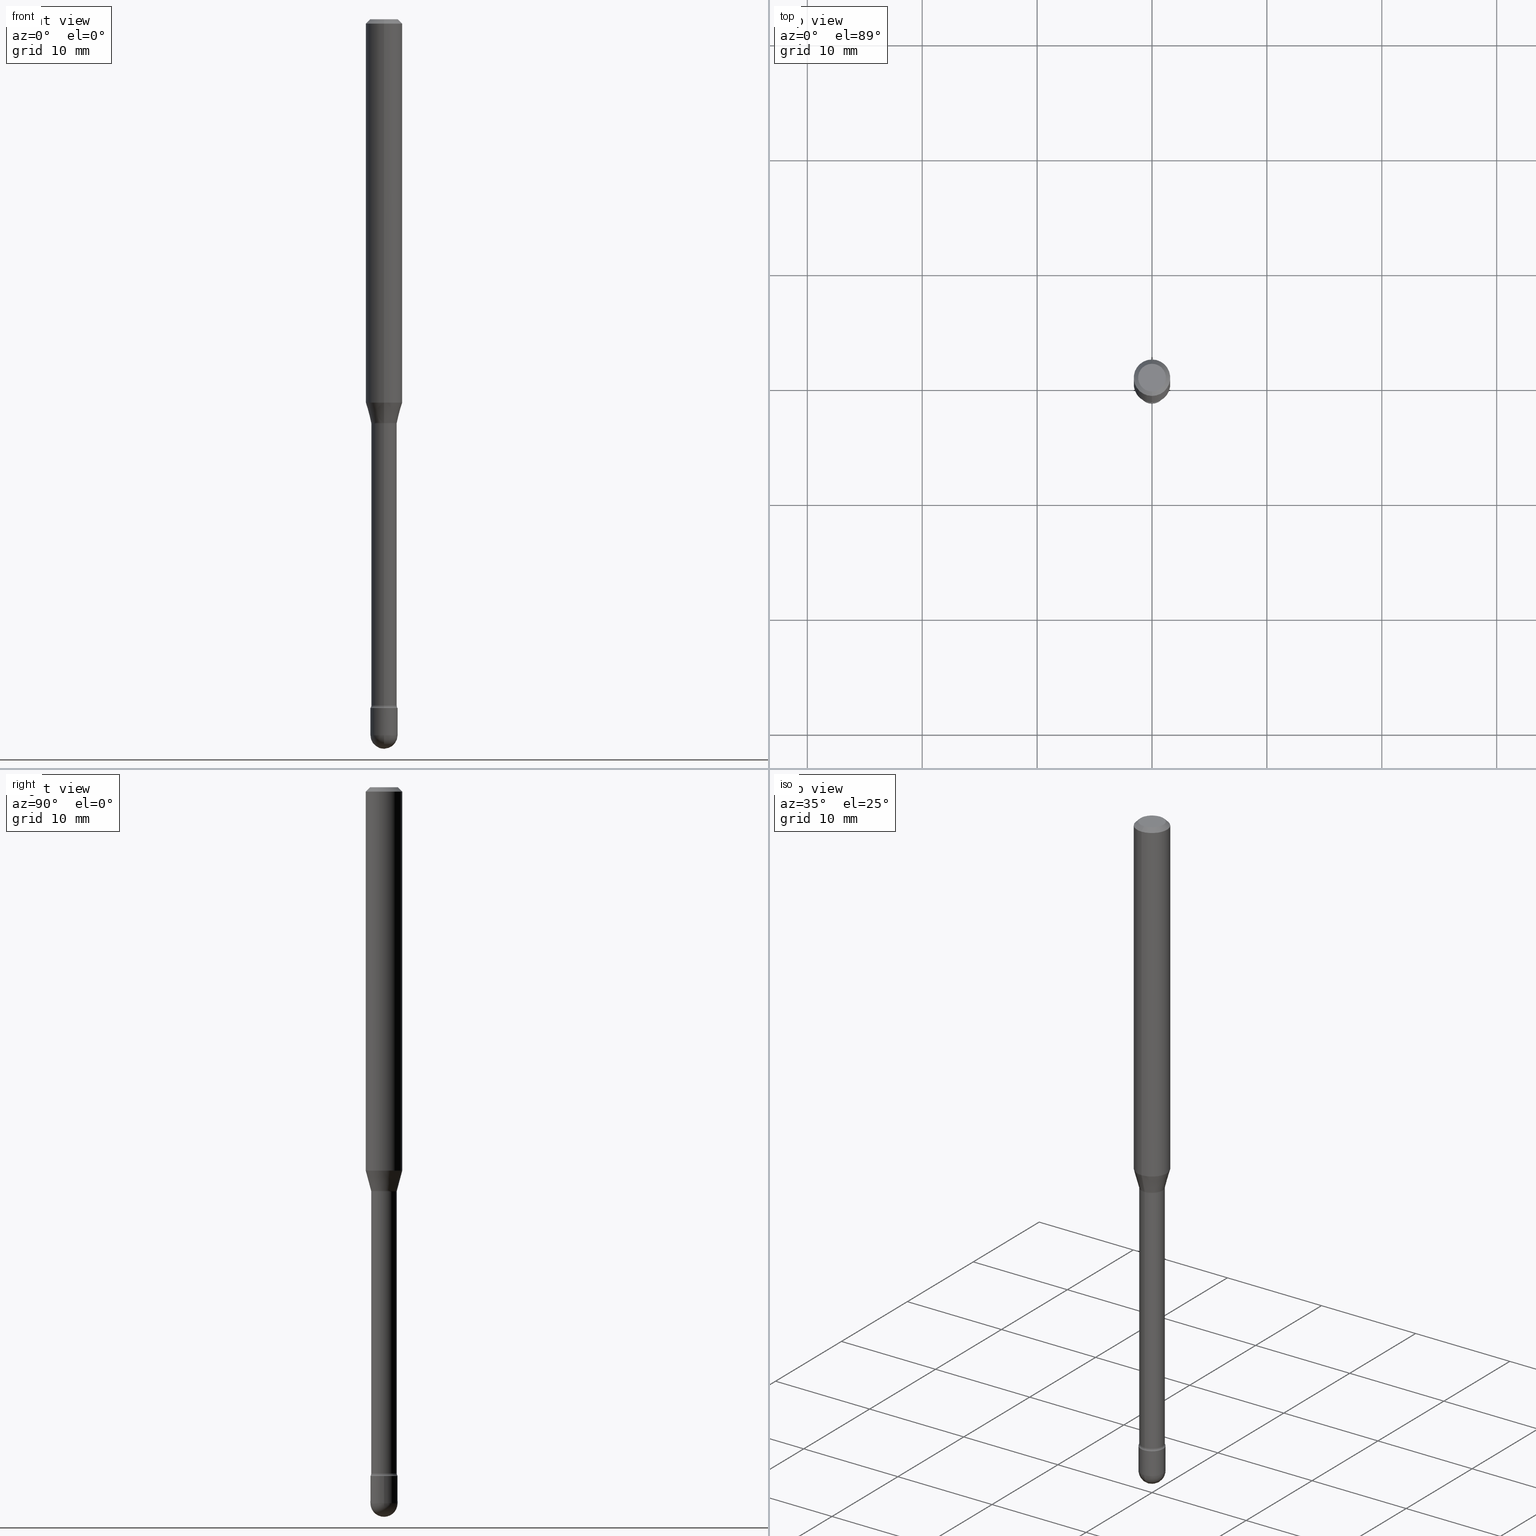
[diagram: canonical four-view strip — front | top / right | iso, engineering-drawing reading convention]
A machine part, canonical four-view strip (front | top / right | iso — engineering-drawing reading convention). The complete STEP part file that produces these views, byte-faithful:
ISO-10303-21;
HEADER;
FILE_DESCRIPTION (( 'STEP AP203' ),
    '1' );
FILE_NAME ('03907.STEP',
    '2024-04-09T21:05:27',
    ( '' ),
    ( '' ),
    'SwSTEP 2.0',
    'SolidWorks 2023',
    '' );
FILE_SCHEMA (( 'CONFIG_CONTROL_DESIGN' ));
ENDSEC;

DATA;
#1 = APPLICATION_CONTEXT ( 'configuration controlled 3d designs of mechanical parts and assemblies' ) ;
#2 = CARTESIAN_POINT ( 'NONE',  ( -0.04649999999999999967, -8.072720340132295025E-15, -2.453500000000000014 ) ) ;
#3 = AXIS2_PLACEMENT_3D ( 'NONE', #499, #113, #283 ) ;
#4 = CONICAL_SURFACE ( 'NONE', #366, 0.04421111260566398110, 0.2617993877991501850 ) ;
#5 = VERTEX_POINT ( 'NONE', #495 ) ;
#6 = PRODUCT_DEFINITION_SHAPE ( 'NONE', 'NONE',  #20 ) ;
#7 = SECURITY_CLASSIFICATION ( '', '', #548 ) ;
#8 = CARTESIAN_POINT ( 'NONE',  ( 3.316907271900976096E-16, 0.04749999999999999362, 3.181763886086367515E-17 ) ) ;
#9 = APPLICATION_PROTOCOL_DEFINITION ( 'international standard', 'config_control_design', 1994, #1 ) ;
#10 = APPROVAL_DATE_TIME ( #402, #212 ) ;
#11 = ORIENTED_EDGE ( 'NONE', *, *, #187, .F. ) ;
#12 = CARTESIAN_POINT ( 'NONE',  ( 4.440892098500949595E-16, 0.06249999999999995837, -0.01500000000000030129 ) ) ;
#13 = ORIENTED_EDGE ( 'NONE', *, *, #340, .F. ) ;
#14 = CARTESIAN_POINT ( 'NONE',  ( 3.247077645124690836E-16, 0.04649999999999176320, -2.360000000000000320 ) ) ;
#15 = VECTOR ( 'NONE', #542, 39.37007874015748143 ) ;
#16 = ORIENTED_EDGE ( 'NONE', *, *, #55, .T. ) ;
#17 = EDGE_CURVE ( 'NONE', #461, #86, #312, .T. ) ;
#18 = CARTESIAN_POINT ( 'NONE',  ( 3.389350734963957439E-29, -4.839115666435715431E-15, -1.385974787463811086 ) ) ;
#19 = DIRECTION ( 'NONE',  ( 1.000000000000000000, -7.105427357601001070E-15, 4.926315601849307894E-29 ) ) ;
#20 = PRODUCT_DEFINITION ( 'UNKNOWN', '', #337, #525 ) ;
#21 = CARTESIAN_POINT ( 'NONE',  ( 2.023514169148198975E-45, -2.889127276794267835E-31, -8.274667016367084816E-17 ) ) ;
#22 = DATE_AND_TIME ( #231, #190 ) ;
#23 = EDGE_LOOP ( 'NONE', ( #93, #353, #144, #485 ) ) ;
#24 = DIRECTION ( 'NONE',  ( -6.982962677686266711E-15, -1.000000000000000000, 0.000000000000000000 ) ) ;
#25 = CARTESIAN_POINT ( 'NONE',  ( 5.771306382596922099E-29, -8.239895959669823433E-15, -2.359999999999999876 ) ) ;
#26 = DIRECTION ( 'NONE',  ( -1.807323732225329350E-15, -0.2588190451025180194, 0.9659258262890689783 ) ) ;
#27 = CARTESIAN_POINT ( 'NONE',  ( 3.105071755272217326E-16, 0.04369999999999515938, -1.385974787463811309 ) ) ;
#28 = LINE ( 'NONE', #289, #15 ) ;
#29 = PERSON_AND_ORGANIZATION ( #261, #44 ) ;
#30 = AXIS2_PLACEMENT_3D ( 'NONE', #320, #285, #551 ) ;
#31 = CARTESIAN_POINT ( 'NONE',  ( 0.04649999999999999967, -8.564603724182234141E-15, -2.359999999999999876 ) ) ;
#32 = CARTESIAN_POINT ( 'NONE',  ( 4.440892098500625669E-16, 0.06250000000000000000, 2.598553390189778015E-16 ) ) ;
#33 = CARTESIAN_POINT ( 'NONE',  ( 4.364351673553919652E-16, 0.06249999999999995143, -0.01500000000000030129 ) ) ;
#34 = ADVANCED_FACE ( 'NONE', ( #205 ), #81, .T. ) ;
#35 = DIRECTION ( 'NONE',  ( 6.982962677686265922E-15, 1.000000000000000000, -5.874941921858636379E-15 ) ) ;
#36 = ORIENTED_EDGE ( 'NONE', *, *, #401, .T. ) ;
#37 = CARTESIAN_POINT ( 'NONE',  ( 3.668195228680313804E-31, -5.237233436934467444E-17, -0.01500000000000008271 ) ) ;
#38 = PERSON_AND_ORGANIZATION ( #261, #44 ) ;
#39 = VERTEX_POINT ( 'NONE', #31 ) ;
#40 = FACE_OUTER_BOUND ( 'NONE', #433, .T. ) ;
#41 = DIRECTION ( 'NONE',  ( 1.000000000000000000, -7.105427357601001070E-15, 4.926315601849307894E-29 ) ) ;
#42 = DIRECTION ( 'NONE',  ( -6.982962677686265922E-15, -1.000000000000000000, 3.483106191921935554E-15 ) ) ;
#43 = CIRCLE ( 'NONE', #420, 0.01500000000000003587 ) ;
#44 = ORGANIZATION ( 'UNSPECIFIED', 'UNSPECIFIED', '' ) ;
#45 = DIRECTION ( 'NONE',  ( 2.445463485786862347E-29, -3.491488957956292582E-15, -1.000000000000000000 ) ) ;
#46 = ORIENTED_EDGE ( 'NONE', *, *, #263, .F. ) ;
#47 = DIRECTION ( 'NONE',  ( -6.982962677686266711E-15, -1.000000000000000000, 3.491488957956292582E-15 ) ) ;
#48 = CYLINDRICAL_SURFACE ( 'NONE', #200, 0.04370000000000008600 ) ;
#49 = DIRECTION ( 'NONE',  ( -2.445463485786862347E-29, 3.491488957956292582E-15, 1.000000000000000000 ) ) ;
#50 = CIRCLE ( 'NONE', #168, 0.06250000000000000000 ) ;
#51 = TOROIDAL_SURFACE ( 'NONE', #442, 0.05870000000000000911, 0.01500000000000003587 ) ;
#52 = DIRECTION ( 'NONE',  ( -6.982962677686265922E-15, -1.000000000000000000, 3.491488957956293370E-15 ) ) ;
#53 = EDGE_LOOP ( 'NONE', ( #273, #254, #87, #510 ) ) ;
#54 = ORIENTED_EDGE ( 'NONE', *, *, #512, .T. ) ;
#55 = EDGE_CURVE ( 'NONE', #478, #354, #385, .T. ) ;
#56 = CONICAL_SURFACE ( 'NONE', #314, 0.04421111260566398110, 0.2617993877991501850 ) ;
#57 = DIRECTION ( 'NONE',  ( -2.445463485786862347E-29, 3.491488957956292582E-15, 1.000000000000000000 ) ) ;
#58 = DIRECTION ( 'NONE',  ( -2.445463485786862347E-29, 3.491488957956292582E-15, 1.000000000000000000 ) ) ;
#59 = EDGE_CURVE ( 'NONE', #429, #565, #280, .T. ) ;
#60 = CARTESIAN_POINT ( 'NONE',  ( -3.051554690148334643E-16, -0.04370000000000837798, -2.351273030308291379 ) ) ;
#61 = APPLICATION_PROTOCOL_DEFINITION ( 'international standard', 'config_control_design', 1994, #243 ) ;
#62 = AXIS2_PLACEMENT_3D ( 'NONE', #282, #325, #115 ) ;
#63 = CYLINDRICAL_SURFACE ( 'NONE', #220, 0.04649999999999999967 ) ;
#64 = CIRCLE ( 'NONE', #106, 0.04749999999999999362 ) ;
#65 = ORIENTED_EDGE ( 'NONE', *, *, #196, .T. ) ;
#66 = DIRECTION ( 'NONE',  ( 1.000000000000000000, -6.982962677686267499E-15, 4.876176775795936353E-29 ) ) ;
#67 = ORIENTED_EDGE ( 'NONE', *, *, #356, .F. ) ;
#68 = CARTESIAN_POINT ( 'NONE',  ( -3.051554690148904102E-16, -0.04370000000000008600, 6.306514663539364027E-16 ) ) ;
#69 = CARTESIAN_POINT ( 'NONE',  ( 5.749952340734353438E-29, -8.209443822461831004E-15, -2.351273030308291823 ) ) ;
#70 = ORIENTED_EDGE ( 'NONE', *, *, #345, .T. ) ;
#71 = FACE_OUTER_BOUND ( 'NONE', #448, .T. ) ;
#72 = CARTESIAN_POINT ( 'NONE',  ( 3.379856747100591095E-29, -4.825560708864450636E-15, -1.382092501787273164 ) ) ;
#73 = APPROVAL_DATE_TIME ( #208, #347 ) ;
#74 = CARTESIAN_POINT ( 'NONE',  ( 3.389358108901824136E-29, -4.839105106536991295E-15, -1.385974787463811086 ) ) ;
#75 = CARTESIAN_POINT ( 'NONE',  ( 3.212941497561210281E-29, -4.587248931130526757E-15, -1.313837444817705258 ) ) ;
#76 = AXIS2_PLACEMENT_3D ( 'NONE', #21, #375, #194 ) ;
#77 = EDGE_CURVE ( 'NONE', #348, #429, #415, .T. ) ;
#78 = FACE_OUTER_BOUND ( 'NONE', #293, .T. ) ;
#79 = PERSON_AND_ORGANIZATION ( #261, #44 ) ;
#80 = EDGE_LOOP ( 'NONE', ( #346, #471 ) ) ;
#81 = SPHERICAL_SURFACE ( 'NONE', #286, 0.04649999999999995109 ) ;
#82 = ADVANCED_FACE ( 'NONE', ( #199 ), #328, .T. ) ;
#83 = CIRCLE ( 'NONE', #76, 0.04749999999999999362 ) ;
#84 = LOCAL_TIME ( 17, 5, 27.00000000000000000, #543 ) ;
#85 = SPHERICAL_SURFACE ( 'NONE', #507, 0.04649999999999995109 ) ;
#86 = VERTEX_POINT ( 'NONE', #514 ) ;
#87 = ORIENTED_EDGE ( 'NONE', *, *, #59, .T. ) ;
#88 = EDGE_CURVE ( 'NONE', #167, #348, #104, .T. ) ;
#89 = DIMENSIONAL_EXPONENTS ( 1.000000000000000000, 0.000000000000000000, 0.000000000000000000, 0.000000000000000000, 0.000000000000000000, 0.000000000000000000, 0.000000000000000000 ) ;
#90 = CARTESIAN_POINT ( 'NONE',  ( -3.773273898774340269E-16, -0.04749999999999999362, 8.309905533925302876E-17 ) ) ;
#91 = VERTEX_POINT ( 'NONE', #90 ) ;
#92 = APPROVAL_PERSON_ORGANIZATION ( #79, #310, #418 ) ;
#93 = ORIENTED_EDGE ( 'NONE', *, *, #211, .F. ) ;
#94 = DIRECTION ( 'NONE',  ( -2.445463485786862347E-29, 3.491488957956292582E-15, 1.000000000000000000 ) ) ;
#95 = EDGE_LOOP ( 'NONE', ( #528, #563, #344, #335 ) ) ;
#96 = ADVANCED_FACE ( 'NONE', ( #178 ), #48, .T. ) ;
#97 = FACE_OUTER_BOUND ( 'NONE', #520, .T. ) ;
#98 = CARTESIAN_POINT ( 'NONE',  ( 5.749964850443326902E-29, -8.209425907846575104E-15, -2.351273030308291823 ) ) ;
#99 = CYLINDRICAL_SURFACE ( 'NONE', #260, 0.04370000000000008600 ) ;
#100 = EDGE_CURVE ( 'NONE', #354, #478, #151, .T. ) ;
#101 = EDGE_CURVE ( 'NONE', #565, #545, #529, .T. ) ;
#102 = CARTESIAN_POINT ( 'NONE',  ( -4.098999091801270804E-16, -0.05870000000000832885, -2.351273030308291379 ) ) ;
#103 = CARTESIAN_POINT ( 'NONE',  ( -4.364351673553912750E-16, -0.06250000000000005551, -0.01499999999999986587 ) ) ;
#104 = CIRCLE ( 'NONE', #395, 0.04421111260566398110 ) ;
#105 = DIRECTION ( 'NONE',  ( -6.982962677686265922E-15, -1.000000000000000000, 3.491488957956292582E-15 ) ) ;
#106 = AXIS2_PLACEMENT_3D ( 'NONE', #519, #49, #47 ) ;
#107 = ADVANCED_FACE ( 'NONE', ( #397 ), #136, .T. ) ;
#108 = DIRECTION ( 'NONE',  ( -6.982962677686265133E-15, -1.000000000000000000, 6.179098042681423534E-15 ) ) ;
#109 = CARTESIAN_POINT ( 'NONE',  ( 5.771293826456995733E-29, -8.239913940776849215E-15, -2.359999999999999876 ) ) ;
#110 = DIRECTION ( 'NONE',  ( -2.445463485786862347E-29, 3.491488957956292582E-15, 1.000000000000000000 ) ) ;
#111 = ADVANCED_FACE ( 'NONE', ( #97 ), #531, .F. ) ;
#112 = ORIENTED_EDGE ( 'NONE', *, *, #435, .F. ) ;
#113 = DIRECTION ( 'NONE',  ( -2.445463485786862347E-29, 3.491488957956292582E-15, 1.000000000000000000 ) ) ;
#114 = CARTESIAN_POINT ( 'NONE',  ( 5.771293826456995733E-29, -8.239913940776849215E-15, -2.359999999999999876 ) ) ;
#115 = DIRECTION ( 'NONE',  ( -6.982962677686265922E-15, -1.000000000000000000, 3.483106191921935554E-15 ) ) ;
#116 = DIRECTION ( 'NONE',  ( 1.000000000000000000, -6.982962677686280121E-15, 0.000000000000000000 ) ) ;
#117 = AXIS2_PLACEMENT_3D ( 'NONE', #102, #270, #24 ) ;
#118 =( GEOMETRIC_REPRESENTATION_CONTEXT ( 3 ) GLOBAL_UNCERTAINTY_ASSIGNED_CONTEXT ( ( #119 ) ) GLOBAL_UNIT_ASSIGNED_CONTEXT ( ( #269, #139, #532 ) ) REPRESENTATION_CONTEXT ( 'NONE', 'WORKASPACE' ) );
#119 = UNCERTAINTY_MEASURE_WITH_UNIT (LENGTH_MEASURE( 1.000000000000000082E-05 ), #269, 'distance_accuracy_value', 'NONE');
#120 = EDGE_CURVE ( 'NONE', #226, #429, #50, .T. ) ;
#121 = CARTESIAN_POINT ( 'NONE',  ( 3.840629472727447874E-16, 0.04749999999999999362, -2.485923956665947374E-16 ) ) ;
#122 = DIRECTION ( 'NONE',  ( -2.445463485786862347E-29, 3.491488957956292582E-15, 1.000000000000000000 ) ) ;
#123 = CC_DESIGN_DATE_AND_TIME_ASSIGNMENT ( #22, #460, ( #20 ) ) ;
#124 = AXIS2_PLACEMENT_3D ( 'NONE', #149, #372, #42 ) ;
#125 = VECTOR ( 'NONE', #238, 39.37007874015748143 ) ;
#126 = VERTEX_POINT ( 'NONE', #203 ) ;
#127 = CARTESIAN_POINT ( 'NONE',  ( -3.304023721283863841E-16, -0.04650000000000854145, -2.453500000000000014 ) ) ;
#128 = EDGE_CURVE ( 'NONE', #545, #565, #304, .T. ) ;
#129 = ORIENTED_EDGE ( 'NONE', *, *, #309, .T. ) ;
#130 = PLANE ( 'NONE',  #522 ) ;
#131 = ORIENTED_EDGE ( 'NONE', *, *, #158, .F. ) ;
#132 = AXIS2_PLACEMENT_3D ( 'NONE', #109, #455, #421 ) ;
#133 = AXIS2_PLACEMENT_3D ( 'NONE', #382, #175, #219 ) ;
#134 = CIRCLE ( 'NONE', #358, 0.04421111260566398110 ) ;
#135 = EDGE_CURVE ( 'NONE', #405, #126, #275, .T. ) ;
#136 = CYLINDRICAL_SURFACE ( 'NONE', #441, 0.06250000000000000000 ) ;
#137 = LENGTH_MEASURE_WITH_UNIT ( LENGTH_MEASURE( 0.02539999999999999897 ), #186 );
#138 = CALENDAR_DATE ( 2024, 9, 4 ) ;
#139 =( NAMED_UNIT ( * ) PLANE_ANGLE_UNIT ( ) SI_UNIT ( $, .RADIAN. ) );
#140 = AXIS2_PLACEMENT_3D ( 'NONE', #8, #184, #501 ) ;
#141 = AXIS2_PLACEMENT_3D ( 'NONE', #69, #162, #237 ) ;
#142 = ORIENTED_EDGE ( 'NONE', *, *, #393, .F. ) ;
#143 = MECHANICAL_CONTEXT ( 'NONE', #1, 'mechanical' ) ;
#144 = ORIENTED_EDGE ( 'NONE', *, *, #101, .T. ) ;
#145 = DIRECTION ( 'NONE',  ( 1.000000000000000000, -6.982962677686260400E-15, 0.000000000000000000 ) ) ;
#146 = ORIENTED_EDGE ( 'NONE', *, *, #17, .F. ) ;
#147 = DIRECTION ( 'NONE',  ( -6.982962677686266711E-15, -1.000000000000000000, 5.874941921858630857E-15 ) ) ;
#148 = CARTESIAN_POINT ( 'NONE',  ( 5.999957715975233376E-29, -8.566349464851658011E-15, -2.453500000000000014 ) ) ;
#149 = CARTESIAN_POINT ( 'NONE',  ( 3.668195228680313804E-31, -5.237233436934467444E-17, -0.01500000000000008271 ) ) ;
#150 = DIRECTION ( 'NONE',  ( -2.445463485786862347E-29, 3.491488957956292582E-15, 1.000000000000000000 ) ) ;
#151 = CIRCLE ( 'NONE', #224, 0.04370000000000000273 ) ;
#152 = ADVANCED_FACE ( 'NONE', ( #417 ), #370, .T. ) ;
#153 = AXIS2_PLACEMENT_3D ( 'NONE', #37, #45, #431 ) ;
#154 = CC_DESIGN_APPROVAL ( #310, ( #7 ) ) ;
#155 = CARTESIAN_POINT ( 'NONE',  ( -4.098999091801499574E-16, -0.05870000000000485246, -1.385974787463810864 ) ) ;
#156 = APPROVAL_STATUS ( 'not_yet_approved' ) ;
#157 = ORIENTED_EDGE ( 'NONE', *, *, #77, .F. ) ;
#158 = EDGE_CURVE ( 'NONE', #126, #354, #28, .T. ) ;
#159 = DIRECTION ( 'NONE',  ( -6.982962677686266711E-15, -1.000000000000000000, 6.251368406554377784E-15 ) ) ;
#160 = FACE_OUTER_BOUND ( 'NONE', #291, .T. ) ;
#161 = FACE_OUTER_BOUND ( 'NONE', #23, .T. ) ;
#162 = DIRECTION ( 'NONE',  ( -2.445463485786862347E-29, 3.491488957956292582E-15, 1.000000000000000000 ) ) ;
#163 = FACE_OUTER_BOUND ( 'NONE', #444, .T. ) ;
#164 = DIRECTION ( 'NONE',  ( -1.000000000000000000, 6.982962677686265922E-15, -4.883557194083112340E-29 ) ) ;
#165 = ADVANCED_FACE ( 'NONE', ( #209 ), #51, .F. ) ;
#166 = ORIENTED_EDGE ( 'NONE', *, *, #350, .T. ) ;
#167 = VERTEX_POINT ( 'NONE', #245 ) ;
#168 = AXIS2_PLACEMENT_3D ( 'NONE', #75, #318, #413 ) ;
#169 = APPROVAL_DATE_TIME ( #195, #310 ) ;
#170 = AXIS2_PLACEMENT_3D ( 'NONE', #25, #487, #145 ) ;
#171 = ADVANCED_FACE ( 'NONE', ( #78 ), #56, .T. ) ;
#172 = DIRECTION ( 'NONE',  ( -1.000000000000000000, 6.982962677686265922E-15, -4.883557194083111780E-29 ) ) ;
#173 = CARTESIAN_POINT ( 'NONE',  ( 5.999957715975233376E-29, -8.566349464851658011E-15, -2.453500000000000014 ) ) ;
#174 = CC_DESIGN_PERSON_AND_ORGANIZATION_ASSIGNMENT ( #445, #315, ( #20 ) ) ;
#175 = DIRECTION ( 'NONE',  ( -2.445463485786862347E-29, 3.491488957956292582E-15, 1.000000000000000000 ) ) ;
#176 = ORIENTED_EDGE ( 'NONE', *, *, #414, .F. ) ;
#177 = CIRCLE ( 'NONE', #343, 0.04649999999999999967 ) ;
#178 = FACE_OUTER_BOUND ( 'NONE', #265, .T. ) ;
#179 = EDGE_CURVE ( 'NONE', #426, #39, #423, .T. ) ;
#180 = MANIFOLD_SOLID_BREP ( 'Body-Move/Copy2[1]', #555 ) ;
#181 = ORIENTED_EDGE ( 'NONE', *, *, #252, .T. ) ;
#182 = CIRCLE ( 'NONE', #170, 0.04649999999999999967 ) ;
#183 = ORIENTED_EDGE ( 'NONE', *, *, #490, .F. ) ;
#184 = DIRECTION ( 'NONE',  ( 2.445463485786862067E-29, -3.491488957956292582E-15, -1.000000000000000000 ) ) ;
#185 = PERSON_AND_ORGANIZATION ( #261, #44 ) ;
#186 =( LENGTH_UNIT ( ) NAMED_UNIT ( * ) SI_UNIT ( $, .METRE. ) );
#187 = EDGE_CURVE ( 'NONE', #5, #39, #182, .T. ) ;
#188 = DIRECTION ( 'NONE',  ( 6.982962677686265922E-15, 1.000000000000000000, -5.874941921858636379E-15 ) ) ;
#189 = AXIS2_PLACEMENT_3D ( 'NONE', #114, #277, #147 ) ;
#190 = LOCAL_TIME ( 17, 5, 27.00000000000000000, #360 ) ;
#191 = CARTESIAN_POINT ( 'NONE',  ( -3.247077645123535647E-16, -0.04650000000000822920, -2.359999999999999876 ) ) ;
#192 = ORIENTED_EDGE ( 'NONE', *, *, #356, .T. ) ;
#193 = CARTESIAN_POINT ( 'NONE',  ( 5.999957715975233376E-29, -8.566349464851658011E-15, -2.453500000000000014 ) ) ;
#194 = DIRECTION ( 'NONE',  ( -6.982962677686266711E-15, -1.000000000000000000, 3.491488957956292582E-15 ) ) ;
#195 = DATE_AND_TIME ( #410, #244 ) ;
#196 = EDGE_CURVE ( 'NONE', #426, #403, #477, .T. ) ;
#197 = DIRECTION ( 'NONE',  ( -2.445468806185136597E-29, 3.491481338843145583E-15, 1.000000000000000000 ) ) ;
#198 = CARTESIAN_POINT ( 'NONE',  ( 5.749952340734353438E-29, -8.209443822461831004E-15, -2.351273030308291823 ) ) ;
#199 = FACE_OUTER_BOUND ( 'NONE', #440, .T. ) ;
#200 = AXIS2_PLACEMENT_3D ( 'NONE', #438, #94, #52 ) ;
#201 = CIRCLE ( 'NONE', #544, 0.04370000000000016233 ) ;
#202 = CARTESIAN_POINT ( 'NONE',  ( -0.04649999999999999967, 3.304023721284465841E-16, -2.287304816968531530E-30 ) ) ;
#203 = CARTESIAN_POINT ( 'NONE',  ( 3.204547738278632229E-16, 0.04369999999999195361, -2.351273030308291823 ) ) ;
#204 = CALENDAR_DATE ( 2024, 9, 4 ) ;
#205 = FACE_OUTER_BOUND ( 'NONE', #439, .T. ) ;
#206 = EDGE_CURVE ( 'NONE', #322, #545, #233, .T. ) ;
#207 = DIRECTION ( 'NONE',  ( 4.937700262164548042E-15, 0.7071067811865451302, -0.7071067811865499042 ) ) ;
#208 = DATE_AND_TIME ( #234, #251 ) ;
#209 = FACE_OUTER_BOUND ( 'NONE', #95, .T. ) ;
#210 = COORDINATED_UNIVERSAL_TIME_OFFSET ( 5, 0, .BEHIND. ) ;
#211 = EDGE_CURVE ( 'NONE', #91, #322, #83, .T. ) ;
#212 = APPROVAL ( #266, 'UNSPECIFIED' ) ;
#213 = CONICAL_SURFACE ( 'NONE', #153, 0.06250000000000000000, 0.7853981633974483900 ) ;
#214 = ORIENTED_EDGE ( 'NONE', *, *, #100, .F. ) ;
#215 = DIRECTION ( 'NONE',  ( 7.105427357601001859E-15, 1.000000000000000000, 0.000000000000000000 ) ) ;
#216 = ORIENTED_EDGE ( 'NONE', *, *, #558, .F. ) ;
#217 = PRODUCT_RELATED_PRODUCT_CATEGORY ( 'detail', '', ( #561 ) ) ;
#218 = ORIENTED_EDGE ( 'NONE', *, *, #211, .T. ) ;
#219 = DIRECTION ( 'NONE',  ( -6.982962677686265922E-15, -1.000000000000000000, 4.370956789862821150E-15 ) ) ;
#220 = AXIS2_PLACEMENT_3D ( 'NONE', #288, #197, #549 ) ;
#221 = EDGE_LOOP ( 'NONE', ( #521, #36, #46, #271, #65 ) ) ;
#222 = ORIENTED_EDGE ( 'NONE', *, *, #350, .F. ) ;
#223 = CARTESIAN_POINT ( 'NONE',  ( 0.000000000000000000, 0.000000000000000000, 0.000000000000000000 ) ) ;
#224 = AXIS2_PLACEMENT_3D ( 'NONE', #18, #122, #503 ) ;
#225 = AXIS2_PLACEMENT_3D ( 'NONE', #148, #272, #450 ) ;
#226 = VERTEX_POINT ( 'NONE', #278 ) ;
#227 = ORIENTED_EDGE ( 'NONE', *, *, #414, .T. ) ;
#228 = CARTESIAN_POINT ( 'NONE',  ( -1.169113584055446105E-44, 1.669184350826100908E-30, 4.780733988912460139E-16 ) ) ;
#229 = COORDINATED_UNIVERSAL_TIME_OFFSET ( 5, 0, .BEHIND. ) ;
#230 = EDGE_LOOP ( 'NONE', ( #13, #491, #467, #389 ) ) ;
#231 = CALENDAR_DATE ( 2024, 9, 4 ) ;
#232 = AXIS2_PLACEMENT_3D ( 'NONE', #359, #329, #458 ) ;
#233 = LINE ( 'NONE', #33, #437 ) ;
#234 = CALENDAR_DATE ( 2024, 9, 4 ) ;
#235 = ORIENTED_EDGE ( 'NONE', *, *, #196, .F. ) ;
#236 = CARTESIAN_POINT ( 'NONE',  ( 0.04649999999999999967, -8.727830476773153796E-15, -2.453500000000000014 ) ) ;
#237 = DIRECTION ( 'NONE',  ( -6.982962677686265922E-15, -1.000000000000000000, 6.251368406554354907E-15 ) ) ;
#238 = DIRECTION ( 'NONE',  ( -2.445463485786862627E-29, 3.491488957956292582E-15, 1.000000000000000000 ) ) ;
#239 = CARTESIAN_POINT ( 'NONE',  ( 5.999957715975233376E-29, -8.566349464851658011E-15, -2.453500000000000014 ) ) ;
#240 = ORIENTED_EDGE ( 'NONE', *, *, #55, .F. ) ;
#241 = CIRCLE ( 'NONE', #380, 0.01499999999999995087 ) ;
#242 = FACE_OUTER_BOUND ( 'NONE', #230, .T. ) ;
#243 = APPLICATION_CONTEXT ( 'configuration controlled 3d designs of mechanical parts and assemblies' ) ;
#244 = LOCAL_TIME ( 17, 5, 27.00000000000000000, #466 ) ;
#245 = CARTESIAN_POINT ( 'NONE',  ( 3.791140294341959010E-16, 0.04421111260565915857, -1.382092501787273386 ) ) ;
#246 = CARTESIAN_POINT ( 'NONE',  ( -4.364351673553916201E-16, -0.06250000000000000000, 6.962914587635143249E-16 ) ) ;
#247 = DIRECTION ( 'NONE',  ( -6.982962677686265133E-15, -1.000000000000000000, 6.179098042681423534E-15 ) ) ;
#248 = CARTESIAN_POINT ( 'NONE',  ( 6.115660277085183893E-29, -8.725856043299847054E-15, -2.500000000000000000 ) ) ;
#249 = VECTOR ( 'NONE', #339, 39.37007874015748143 ) ;
#250 = AXIS2_PLACEMENT_3D ( 'NONE', #449, #534, #105 ) ;
#251 = LOCAL_TIME ( 17, 5, 27.00000000000000000, #210 ) ;
#252 = EDGE_CURVE ( 'NONE', #126, #405, #201, .T. ) ;
#253 = ORIENTED_EDGE ( 'NONE', *, *, #252, .F. ) ;
#254 = ORIENTED_EDGE ( 'NONE', *, *, #120, .T. ) ;
#255 = DIRECTION ( 'NONE',  ( 1.000000000000000000, -6.982962677686265922E-15, 4.876176775795935793E-29 ) ) ;
#256 = LINE ( 'NONE', #513, #357 ) ;
#257 = ORIENTED_EDGE ( 'NONE', *, *, #101, .F. ) ;
#258 = VECTOR ( 'NONE', #361, 39.37007874015748143 ) ;
#259 = DIRECTION ( 'NONE',  ( -1.000000000000000000, 6.982962677686265922E-15, -4.883557194083111780E-29 ) ) ;
#260 = AXIS2_PLACEMENT_3D ( 'NONE', #526, #57, #480 ) ;
#261 = PERSON ( 'UNSPECIFIED', 'UNSPECIFIED', 'UNSPECIFIED', ('UNSPECIFIED'), ('UNSPECIFIED'), ('UNSPECIFIED') ) ;
#262 = ORIENTED_EDGE ( 'NONE', *, *, #88, .T. ) ;
#263 = EDGE_CURVE ( 'NONE', #39, #5, #305, .T. ) ;
#264 = DIRECTION ( 'NONE',  ( -2.445463485786862347E-29, 3.491488957956292582E-15, 1.000000000000000000 ) ) ;
#265 = EDGE_LOOP ( 'NONE', ( #373, #391, #240, #176 ) ) ;
#266 = APPROVAL_STATUS ( 'not_yet_approved' ) ;
#267 = CIRCLE ( 'NONE', #117, 0.01499999999999995087 ) ;
#268 = EDGE_LOOP ( 'NONE', ( #465, #262, #341, #327 ) ) ;
#269 =( CONVERSION_BASED_UNIT ( 'INCH', #137 ) LENGTH_UNIT ( ) NAMED_UNIT ( #89 ) );
#270 = DIRECTION ( 'NONE',  ( -1.000000000000000000, 6.982962677686265922E-15, -4.883557194083112340E-29 ) ) ;
#271 = ORIENTED_EDGE ( 'NONE', *, *, #179, .F. ) ;
#272 = DIRECTION ( 'NONE',  ( -2.445468806185136597E-29, 3.491481338843145583E-15, 1.000000000000000000 ) ) ;
#273 = ORIENTED_EDGE ( 'NONE', *, *, #474, .F. ) ;
#274 = CC_DESIGN_DATE_AND_TIME_ASSIGNMENT ( #377, #279, ( #7 ) ) ;
#275 = CIRCLE ( 'NONE', #141, 0.04370000000000016233 ) ;
#276 = AXIS2_PLACEMENT_3D ( 'NONE', #392, #355, #447 ) ;
#277 = DIRECTION ( 'NONE',  ( -2.445463485786862347E-29, 3.491488957956292582E-15, 1.000000000000000000 ) ) ;
#278 = CARTESIAN_POINT ( 'NONE',  ( 4.440892098500948609E-16, 0.06249999999999544115, -1.313837444817705702 ) ) ;
#279 = DATE_TIME_ROLE ( 'classification_date' ) ;
#280 = LINE ( 'NONE', #246, #249 ) ;
#281 = DIRECTION ( 'NONE',  ( 6.982962677686265133E-15, 1.000000000000000000, 0.000000000000000000 ) ) ;
#282 = CARTESIAN_POINT ( 'NONE',  ( 3.668195228680313804E-31, -5.237233436934467444E-17, -0.01500000000000008271 ) ) ;
#283 = DIRECTION ( 'NONE',  ( -6.982962677686265922E-15, -1.000000000000000000, 3.491488957956291793E-15 ) ) ;
#284 = DIRECTION ( 'NONE',  ( -2.445463485786862067E-29, 3.491488957956292582E-15, 1.000000000000000000 ) ) ;
#285 = DIRECTION ( 'NONE',  ( -2.445468806185136597E-29, 3.491481338843145583E-15, 1.000000000000000000 ) ) ;
#286 = AXIS2_PLACEMENT_3D ( 'NONE', #424, #172, #35 ) ;
#287 = VECTOR ( 'NONE', #453, 39.37007874015748143 ) ;
#288 = CARTESIAN_POINT ( 'NONE',  ( 0.000000000000000000, 0.000000000000000000, 0.000000000000000000 ) ) ;
#289 = CARTESIAN_POINT ( 'NONE',  ( 3.105071755271643430E-16, 0.04370000000000008600, 3.254953314285557730E-16 ) ) ;
#290 = CC_DESIGN_PERSON_AND_ORGANIZATION_ASSIGNMENT ( #29, #338, ( #7 ) ) ;
#291 = EDGE_LOOP ( 'NONE', ( #376, #54, #222, #334 ) ) ;
#292 = CARTESIAN_POINT ( 'NONE',  ( 5.999957715975233376E-29, -8.566349464851658011E-15, -2.453500000000000014 ) ) ;
#293 = EDGE_LOOP ( 'NONE', ( #533, #70, #183, #157 ) ) ;
#294 = PERSON_AND_ORGANIZATION_ROLE ( 'creator' ) ;
#295 = EDGE_CURVE ( 'NONE', #348, #478, #43, .T. ) ;
#296 = FACE_OUTER_BOUND ( 'NONE', #80, .T. ) ;
#297 = AXIS2_PLACEMENT_3D ( 'NONE', #498, #505, #66 ) ;
#298 = LOCAL_TIME ( 17, 5, 27.00000000000000000, #229 ) ;
#299 = CARTESIAN_POINT ( 'NONE',  ( 3.379856747100591095E-29, -4.825560708864450636E-15, -1.382092501787273164 ) ) ;
#300 = ORIENTED_EDGE ( 'NONE', *, *, #295, .T. ) ;
#301 = ADVANCED_FACE ( 'NONE', ( #456 ), #4, .T. ) ;
#302 = ORIENTED_EDGE ( 'NONE', *, *, #490, .T. ) ;
#303 = DIRECTION ( 'NONE',  ( -2.445463485786862347E-29, 3.491488957956292582E-15, 1.000000000000000000 ) ) ;
#304 = CIRCLE ( 'NONE', #62, 0.06250000000000000000 ) ;
#305 = CIRCLE ( 'NONE', #30, 0.04649999999999999967 ) ;
#306 = EDGE_CURVE ( 'NONE', #403, #553, #493, .T. ) ;
#307 = CC_DESIGN_APPROVAL ( #347, ( #337 ) ) ;
#308 = DIRECTION ( 'NONE',  ( -2.445463485786862347E-29, 3.491488957956292582E-15, 1.000000000000000000 ) ) ;
#309 = EDGE_CURVE ( 'NONE', #322, #91, #64, .T. ) ;
#310 = APPROVAL ( #554, 'UNSPECIFIED' ) ;
#311 = PERSON_AND_ORGANIZATION_ROLE ( 'design_owner' ) ;
#312 = CIRCLE ( 'NONE', #132, 0.04649999999999999967 ) ;
#313 = ORIENTED_EDGE ( 'NONE', *, *, #179, .T. ) ;
#314 = AXIS2_PLACEMENT_3D ( 'NONE', #535, #110, #247 ) ;
#315 = PERSON_AND_ORGANIZATION_ROLE ( 'creator' ) ;
#316 = FACE_OUTER_BOUND ( 'NONE', #475, .T. ) ;
#317 = ORIENTED_EDGE ( 'NONE', *, *, #476, .T. ) ;
#318 = DIRECTION ( 'NONE',  ( -2.445463485786862347E-29, 3.491488957956292582E-15, 1.000000000000000000 ) ) ;
#319 = ORIENTED_EDGE ( 'NONE', *, *, #128, .T. ) ;
#320 = CARTESIAN_POINT ( 'NONE',  ( 5.771306382596922099E-29, -8.239895959669823433E-15, -2.359999999999999876 ) ) ;
#321 = CIRCLE ( 'NONE', #451, 0.01500000000000003587 ) ;
#322 = VERTEX_POINT ( 'NONE', #121 ) ;
#323 = AXIS2_PLACEMENT_3D ( 'NONE', #223, #399, #443 ) ;
#324 = CARTESIAN_POINT ( 'NONE',  ( 4.170885858912127456E-16, 0.05869999999999517271, -1.385974787463811309 ) ) ;
#325 = DIRECTION ( 'NONE',  ( -2.445463485786862347E-29, 3.491488957956292582E-15, 1.000000000000000000 ) ) ;
#326 = APPROVAL_ROLE ( '' ) ;
#327 = ORIENTED_EDGE ( 'NONE', *, *, #120, .F. ) ;
#328 = CYLINDRICAL_SURFACE ( 'NONE', #3, 0.06250000000000000000 ) ;
#329 = DIRECTION ( 'NONE',  ( 2.445463485786862347E-29, -3.491488957956292582E-15, -1.000000000000000000 ) ) ;
#330 = DIRECTION ( 'NONE',  ( -2.445463485786862347E-29, 3.491488957956292582E-15, 1.000000000000000000 ) ) ;
#331 = VERTEX_POINT ( 'NONE', #248 ) ;
#332 = CARTESIAN_POINT ( 'NONE',  ( 3.247077645124712036E-16, 0.04649999999999141626, -2.453500000000000458 ) ) ;
#333 = DIRECTION ( 'NONE',  ( -2.445468806185136597E-29, 3.491481338843145583E-15, 1.000000000000000000 ) ) ;
#334 = ORIENTED_EDGE ( 'NONE', *, *, #306, .F. ) ;
#335 = ORIENTED_EDGE ( 'NONE', *, *, #295, .F. ) ;
#336 = CIRCLE ( 'NONE', #407, 0.04649999999999995109 ) ;
#337 = PRODUCT_DEFINITION_FORMATION_WITH_SPECIFIED_SOURCE ( 'ANY', '', #561, .NOT_KNOWN. ) ;
#338 = PERSON_AND_ORGANIZATION_ROLE ( 'classification_officer' ) ;
#339 = DIRECTION ( 'NONE',  ( -2.445463485786862627E-29, 3.491488957956292582E-15, 1.000000000000000000 ) ) ;
#340 = EDGE_CURVE ( 'NONE', #126, #86, #241, .T. ) ;
#341 = ORIENTED_EDGE ( 'NONE', *, *, #77, .T. ) ;
#342 = ORIENTED_EDGE ( 'NONE', *, *, #566, .T. ) ;
#343 = AXIS2_PLACEMENT_3D ( 'NONE', #517, #390, #116 ) ;
#344 = ORIENTED_EDGE ( 'NONE', *, *, #100, .T. ) ;
#345 = EDGE_CURVE ( 'NONE', #167, #226, #256, .T. ) ;
#346 = ORIENTED_EDGE ( 'NONE', *, *, #263, .T. ) ;
#347 = APPROVAL ( #156, 'UNSPECIFIED' ) ;
#348 = VERTEX_POINT ( 'NONE', #383 ) ;
#349 = APPROVAL_PERSON_ORGANIZATION ( #539, #347, #326 ) ;
#350 = EDGE_CURVE ( 'NONE', #553, #518, #177, .T. ) ;
#351 = EDGE_LOOP ( 'NONE', ( #131, #181, #227, #214 ) ) ;
#352 = PERSON_AND_ORGANIZATION ( #261, #44 ) ;
#353 = ORIENTED_EDGE ( 'NONE', *, *, #393, .T. ) ;
#354 = VERTEX_POINT ( 'NONE', #27 ) ;
#355 = DIRECTION ( 'NONE',  ( -2.445468806185136597E-29, 3.491481338843145583E-15, 1.000000000000000000 ) ) ;
#356 = EDGE_CURVE ( 'NONE', #86, #461, #562, .T. ) ;
#357 = VECTOR ( 'NONE', #473, 39.37007874015748143 ) ;
#358 = AXIS2_PLACEMENT_3D ( 'NONE', #488, #58, #483 ) ;
#359 = CARTESIAN_POINT ( 'NONE',  ( 3.668195228680313804E-31, -5.237233436934467444E-17, -0.01500000000000008271 ) ) ;
#360 = COORDINATED_UNIVERSAL_TIME_OFFSET ( 5, 0, .BEHIND. ) ;
#361 = DIRECTION ( 'NONE',  ( -2.445463485786862627E-29, 3.491488957956292582E-15, 1.000000000000000000 ) ) ;
#362 = CC_DESIGN_PERSON_AND_ORGANIZATION_ASSIGNMENT ( #185, #311, ( #561 ) ) ;
#363 = DIRECTION ( 'NONE',  ( -6.982962677686265922E-15, -1.000000000000000000, 6.251368406554354907E-15 ) ) ;
#364 = DIRECTION ( 'NONE',  ( -2.445463485786862347E-29, 3.491488957956292582E-15, 1.000000000000000000 ) ) ;
#365 = CLOSED_SHELL ( 'NONE', ( #165, #96, #552, #446, #82, #171, #301, #107, #484, #111, #454, #378, #537, #368 ) ) ;
#366 = AXIS2_PLACEMENT_3D ( 'NONE', #72, #330, #108 ) ;
#367 = ORIENTED_EDGE ( 'NONE', *, *, #206, .T. ) ;
#368 = ADVANCED_FACE ( 'NONE', ( #316 ), #430, .F. ) ;
#369 = LINE ( 'NONE', #68, #125 ) ;
#370 = CYLINDRICAL_SURFACE ( 'NONE', #297, 0.04649999999999999967 ) ;
#371 = PERSON_AND_ORGANIZATION_ROLE ( 'design_supplier' ) ;
#372 = DIRECTION ( 'NONE',  ( -2.445463485786862347E-29, 3.491488957956292582E-15, 1.000000000000000000 ) ) ;
#373 = ORIENTED_EDGE ( 'NONE', *, *, #135, .T. ) ;
#374 = LINE ( 'NONE', #202, #287 ) ;
#375 = DIRECTION ( 'NONE',  ( -2.445463485786862347E-29, 3.491488957956292582E-15, 1.000000000000000000 ) ) ;
#376 = ORIENTED_EDGE ( 'NONE', *, *, #476, .F. ) ;
#377 = DATE_AND_TIME ( #204, #84 ) ;
#378 = ADVANCED_FACE ( 'NONE', ( #242 ), #515, .F. ) ;
#379 = ORIENTED_EDGE ( 'NONE', *, *, #474, .T. ) ;
#380 = AXIS2_PLACEMENT_3D ( 'NONE', #427, #41, #215 ) ;
#381 = CC_DESIGN_PERSON_AND_ORGANIZATION_ASSIGNMENT ( #38, #294, ( #337 ) ) ;
#382 = CARTESIAN_POINT ( 'NONE',  ( 3.212941497561210281E-29, -4.587248931130526757E-15, -1.313837444817705258 ) ) ;
#383 = CARTESIAN_POINT ( 'NONE',  ( -3.087245492643025853E-16, -0.04421111260566880363, -1.382092501787272942 ) ) ;
#384 = DIRECTION ( 'NONE',  ( -2.438088387897960049E-29, 3.491481338843145188E-15, 1.000000000000000000 ) ) ;
#385 = CIRCLE ( 'NONE', #406, 0.04370000000000000273 ) ;
#386 = ADVANCED_FACE ( 'NONE', ( #163 ), #63, .T. ) ;
#387 = AXIS2_PLACEMENT_3D ( 'NONE', #239, #333, #468 ) ;
#388 = CC_DESIGN_APPROVAL ( #212, ( #20 ) ) ;
#389 = ORIENTED_EDGE ( 'NONE', *, *, #17, .T. ) ;
#390 = DIRECTION ( 'NONE',  ( -2.445468806185136597E-29, 3.491481338843145583E-15, 1.000000000000000000 ) ) ;
#391 = ORIENTED_EDGE ( 'NONE', *, *, #158, .T. ) ;
#392 = CARTESIAN_POINT ( 'NONE',  ( 5.999957715975233376E-29, -8.566349464851658011E-15, -2.453500000000000014 ) ) ;
#393 = EDGE_CURVE ( 'NONE', #91, #565, #486, .T. ) ;
#394 = ORIENTED_EDGE ( 'NONE', *, *, #512, .F. ) ;
#395 = AXIS2_PLACEMENT_3D ( 'NONE', #299, #303, #434 ) ;
#396 = AXIS2_PLACEMENT_3D ( 'NONE', #74, #408, #504 ) ;
#397 = FACE_OUTER_BOUND ( 'NONE', #53, .T. ) ;
#398 = AXIS2_PLACEMENT_3D ( 'NONE', #98, #264, #536 ) ;
#399 = DIRECTION ( 'NONE',  ( 0.000000000000000000, 0.000000000000000000, 1.000000000000000000 ) ) ;
#400 = APPROVAL_ROLE ( '' ) ;
#401 = EDGE_CURVE ( 'NONE', #553, #5, #374, .T. ) ;
#402 = DATE_AND_TIME ( #138, #298 ) ;
#403 = VERTEX_POINT ( 'NONE', #332 ) ;
#404 = CARTESIAN_POINT ( 'NONE',  ( -4.364351673553592768E-16, -0.06250000000000455191, -1.313837444817705036 ) ) ;
#405 = VERTEX_POINT ( 'NONE', #60 ) ;
#406 = AXIS2_PLACEMENT_3D ( 'NONE', #496, #150, #159 ) ;
#407 = AXIS2_PLACEMENT_3D ( 'NONE', #193, #538, #281 ) ;
#408 = DIRECTION ( 'NONE',  ( -2.445463485786862347E-29, 3.491488957956292582E-15, 1.000000000000000000 ) ) ;
#409 = DIRECTION ( 'NONE',  ( -2.445463485786862347E-29, 3.491488957956292582E-15, 1.000000000000000000 ) ) ;
#410 = CALENDAR_DATE ( 2024, 9, 4 ) ;
#411 = ORIENTED_EDGE ( 'NONE', *, *, #463, .F. ) ;
#412 = CARTESIAN_POINT ( 'NONE',  ( -4.287811248607203282E-16, -0.06250000000000005551, -0.01499999999999986587 ) ) ;
#413 = DIRECTION ( 'NONE',  ( -6.982962677686265922E-15, -1.000000000000000000, 4.370956789862821150E-15 ) ) ;
#414 = EDGE_CURVE ( 'NONE', #405, #478, #369, .T. ) ;
#415 = LINE ( 'NONE', #509, #481 ) ;
#416 = CARTESIAN_POINT ( 'NONE',  ( -3.051554690148559469E-16, -0.04370000000000483914, -1.385974787463810864 ) ) ;
#417 = FACE_OUTER_BOUND ( 'NONE', #221, .T. ) ;
#418 = APPROVAL_ROLE ( '' ) ;
#419 = CC_DESIGN_PERSON_AND_ORGANIZATION_ASSIGNMENT ( #457, #371, ( #337 ) ) ;
#420 = AXIS2_PLACEMENT_3D ( 'NONE', #155, #164, #492 ) ;
#421 = DIRECTION ( 'NONE',  ( -6.982962677686266711E-15, -1.000000000000000000, 5.874941921858630857E-15 ) ) ;
#422 = LINE ( 'NONE', #32, #258 ) ;
#423 = LINE ( 'NONE', #547, #470 ) ;
#424 = CARTESIAN_POINT ( 'NONE',  ( 5.999957715975233376E-29, -8.566349464851658011E-15, -2.453500000000000014 ) ) ;
#425 = DIRECTION ( 'NONE',  ( -2.445468806185136877E-29, 3.491481338843145188E-15, 1.000000000000000000 ) ) ;
#426 = VERTEX_POINT ( 'NONE', #236 ) ;
#427 = CARTESIAN_POINT ( 'NONE',  ( 4.170885858912370524E-16, 0.05869999999999190449, -2.351273030308291823 ) ) ;
#428 = CONICAL_SURFACE ( 'NONE', #232, 0.06250000000000000000, 0.7853981633974483900 ) ;
#429 = VERTEX_POINT ( 'NONE', #404 ) ;
#430 = TOROIDAL_SURFACE ( 'NONE', #396, 0.05870000000000000911, 0.01500000000000003587 ) ;
#431 = DIRECTION ( 'NONE',  ( 6.982962677686265922E-15, 1.000000000000000000, -3.483106191921935554E-15 ) ) ;
#432 = TOROIDAL_SURFACE ( 'NONE', #398, 0.05870000000000011320, 0.01499999999999995087 ) ;
#433 = EDGE_LOOP ( 'NONE', ( #142, #511, #367, #319 ) ) ;
#434 = DIRECTION ( 'NONE',  ( -6.982962677686265133E-15, -1.000000000000000000, 6.179098042681423534E-15 ) ) ;
#435 = EDGE_CURVE ( 'NONE', #405, #461, #267, .T. ) ;
#436 = EDGE_LOOP ( 'NONE', ( #253, #452, #192, #112 ) ) ;
#437 = VECTOR ( 'NONE', #207, 39.37007874015748143 ) ;
#438 = CARTESIAN_POINT ( 'NONE',  ( -1.169113584055446105E-44, 1.669184350826100908E-30, 4.780733988912460139E-16 ) ) ;
#439 = EDGE_LOOP ( 'NONE', ( #394, #317, #235, #559 ) ) ;
#440 = EDGE_LOOP ( 'NONE', ( #302, #379, #257, #489 ) ) ;
#441 = AXIS2_PLACEMENT_3D ( 'NONE', #228, #308, #479 ) ;
#442 = AXIS2_PLACEMENT_3D ( 'NONE', #464, #409, #459 ) ;
#443 = DIRECTION ( 'NONE',  ( 1.000000000000000000, 0.000000000000000000, 0.000000000000000000 ) ) ;
#444 = EDGE_LOOP ( 'NONE', ( #540, #166, #342, #313, #11 ) ) ;
#445 = PERSON_AND_ORGANIZATION ( #261, #44 ) ;
#446 = ADVANCED_FACE ( 'NONE', ( #161 ), #428, .T. ) ;
#447 = DIRECTION ( 'NONE',  ( 1.000000000000000000, -6.982962677686280121E-15, 0.000000000000000000 ) ) ;
#448 = EDGE_LOOP ( 'NONE', ( #146, #67 ) ) ;
#449 = CARTESIAN_POINT ( 'NONE',  ( 5.749964850443326902E-29, -8.209425907846575104E-15, -2.351273030308291823 ) ) ;
#450 = DIRECTION ( 'NONE',  ( 1.000000000000000000, -6.982962677686280121E-15, 0.000000000000000000 ) ) ;
#451 = AXIS2_PLACEMENT_3D ( 'NONE', #324, #19, #497 ) ;
#452 = ORIENTED_EDGE ( 'NONE', *, *, #340, .T. ) ;
#453 = DIRECTION ( 'NONE',  ( -2.445468806185136877E-29, 3.491481338843145188E-15, 1.000000000000000000 ) ) ;
#454 = ADVANCED_FACE ( 'NONE', ( #71 ), #500, .F. ) ;
#455 = DIRECTION ( 'NONE',  ( -2.445463485786862347E-29, 3.491488957956292582E-15, 1.000000000000000000 ) ) ;
#456 = FACE_OUTER_BOUND ( 'NONE', #268, .T. ) ;
#457 = PERSON_AND_ORGANIZATION ( #261, #44 ) ;
#458 = DIRECTION ( 'NONE',  ( 6.982962677686265922E-15, 1.000000000000000000, -3.483106191921935554E-15 ) ) ;
#459 = DIRECTION ( 'NONE',  ( -6.982962677686265922E-15, -1.000000000000000000, 3.491488957956292582E-15 ) ) ;
#460 = DATE_TIME_ROLE ( 'creation_date' ) ;
#461 = VERTEX_POINT ( 'NONE', #191 ) ;
#462 = AXIS2_PLACEMENT_3D ( 'NONE', #173, #560, #516 ) ;
#463 = EDGE_CURVE ( 'NONE', #167, #354, #321, .T. ) ;
#464 = CARTESIAN_POINT ( 'NONE',  ( 3.389358108901824136E-29, -4.839105106536991295E-15, -1.385974787463811086 ) ) ;
#465 = ORIENTED_EDGE ( 'NONE', *, *, #345, .F. ) ;
#466 = COORDINATED_UNIVERSAL_TIME_OFFSET ( 5, 0, .BEHIND. ) ;
#467 = ORIENTED_EDGE ( 'NONE', *, *, #435, .T. ) ;
#468 = DIRECTION ( 'NONE',  ( 1.000000000000000000, -6.982962677686280121E-15, 0.000000000000000000 ) ) ;
#469 = FACE_OUTER_BOUND ( 'NONE', #351, .T. ) ;
#470 = VECTOR ( 'NONE', #425, 39.37007874015748143 ) ;
#471 = ORIENTED_EDGE ( 'NONE', *, *, #187, .T. ) ;
#472 = CC_DESIGN_SECURITY_CLASSIFICATION ( #7, ( #337 ) ) ;
#473 = DIRECTION ( 'NONE',  ( 1.839019923739599526E-15, 0.2588190451025248473, 0.9659258262890670910 ) ) ;
#474 = EDGE_CURVE ( 'NONE', #226, #545, #422, .T. ) ;
#475 = EDGE_LOOP ( 'NONE', ( #411, #216, #300, #16 ) ) ;
#476 = EDGE_CURVE ( 'NONE', #331, #403, #336, .T. ) ;
#477 = CIRCLE ( 'NONE', #225, 0.04649999999999999967 ) ;
#478 = VERTEX_POINT ( 'NONE', #416 ) ;
#479 = DIRECTION ( 'NONE',  ( -6.982962677686265922E-15, -1.000000000000000000, 3.491488957956291793E-15 ) ) ;
#480 = DIRECTION ( 'NONE',  ( -6.982962677686265922E-15, -1.000000000000000000, 3.491488957956293370E-15 ) ) ;
#481 = VECTOR ( 'NONE', #26, 39.37007874015749564 ) ;
#482 = CIRCLE ( 'NONE', #462, 0.04649999999999995109 ) ;
#483 = DIRECTION ( 'NONE',  ( -6.982962677686265133E-15, -1.000000000000000000, 6.179098042681423534E-15 ) ) ;
#484 = ADVANCED_FACE ( 'NONE', ( #40 ), #213, .T. ) ;
#485 = ORIENTED_EDGE ( 'NONE', *, *, #206, .F. ) ;
#486 = LINE ( 'NONE', #412, #530 ) ;
#487 = DIRECTION ( 'NONE',  ( -2.445468806185136597E-29, 3.491481338843145583E-15, 1.000000000000000000 ) ) ;
#488 = CARTESIAN_POINT ( 'NONE',  ( 3.379856747100591095E-29, -4.825560708864450636E-15, -1.382092501787273164 ) ) ;
#489 = ORIENTED_EDGE ( 'NONE', *, *, #59, .F. ) ;
#490 = EDGE_CURVE ( 'NONE', #429, #226, #556, .T. ) ;
#491 = ORIENTED_EDGE ( 'NONE', *, *, #135, .F. ) ;
#492 = DIRECTION ( 'NONE',  ( -6.982962677686268288E-15, -1.000000000000000000, 0.000000000000000000 ) ) ;
#493 = CIRCLE ( 'NONE', #387, 0.04649999999999999967 ) ;
#494 = APPROVAL_PERSON_ORGANIZATION ( #352, #212, #400 ) ;
#495 = CARTESIAN_POINT ( 'NONE',  ( -0.04649999999999999967, -8.072720340132295025E-15, -2.359999999999999876 ) ) ;
#496 = CARTESIAN_POINT ( 'NONE',  ( 3.389350734963957439E-29, -4.839115666435715431E-15, -1.385974787463811086 ) ) ;
#497 = DIRECTION ( 'NONE',  ( 7.105427357601001859E-15, 1.000000000000000000, 0.000000000000000000 ) ) ;
#498 = CARTESIAN_POINT ( 'NONE',  ( 0.000000000000000000, 0.000000000000000000, 0.000000000000000000 ) ) ;
#499 = CARTESIAN_POINT ( 'NONE',  ( -1.169113584055446105E-44, 1.669184350826100908E-30, 4.780733988912460139E-16 ) ) ;
#500 = PLANE ( 'NONE',  #506 ) ;
#501 = DIRECTION ( 'NONE',  ( 6.982962677686265922E-15, 1.000000000000000000, -3.491488957956292582E-15 ) ) ;
#502 = ADVANCED_FACE ( 'NONE', ( #296 ), #130, .T. ) ;
#503 = DIRECTION ( 'NONE',  ( -6.982962677686266711E-15, -1.000000000000000000, 6.251368406554377784E-15 ) ) ;
#504 = DIRECTION ( 'NONE',  ( -6.982962677686265922E-15, -1.000000000000000000, 3.491488957956292582E-15 ) ) ;
#505 = DIRECTION ( 'NONE',  ( -2.445468806185136597E-29, 3.491481338843145583E-15, 1.000000000000000000 ) ) ;
#506 = AXIS2_PLACEMENT_3D ( 'NONE', #14, #284, #541 ) ;
#507 = AXIS2_PLACEMENT_3D ( 'NONE', #292, #259, #188 ) ;
#508 = SHAPE_DEFINITION_REPRESENTATION ( #6, #557 ) ;
#509 = CARTESIAN_POINT ( 'NONE',  ( -3.087245492643025853E-16, -0.04421111260566880363, -1.382092501787272942 ) ) ;
#510 = ORIENTED_EDGE ( 'NONE', *, *, #128, .F. ) ;
#511 = ORIENTED_EDGE ( 'NONE', *, *, #309, .F. ) ;
#512 = EDGE_CURVE ( 'NONE', #331, #518, #482, .T. ) ;
#513 = CARTESIAN_POINT ( 'NONE',  ( 3.141388490182970891E-16, 0.04421111260565915857, -1.382092501787273386 ) ) ;
#514 = CARTESIAN_POINT ( 'NONE',  ( 3.304023721285041216E-16, 0.04649999999999174932, -2.360000000000000320 ) ) ;
#515 = TOROIDAL_SURFACE ( 'NONE', #250, 0.05870000000000011320, 0.01499999999999995087 ) ;
#516 = DIRECTION ( 'NONE',  ( -7.105427357601001070E-15, -1.000000000000000000, 0.000000000000000000 ) ) ;
#517 = CARTESIAN_POINT ( 'NONE',  ( 5.999957715975233376E-29, -8.566349464851658011E-15, -2.453500000000000014 ) ) ;
#518 = VERTEX_POINT ( 'NONE', #127 ) ;
#519 = CARTESIAN_POINT ( 'NONE',  ( 2.023514169148198975E-45, -2.889127276794267835E-31, -8.274667016367084816E-17 ) ) ;
#520 = EDGE_LOOP ( 'NONE', ( #129, #218 ) ) ;
#521 = ORIENTED_EDGE ( 'NONE', *, *, #306, .T. ) ;
#522 = AXIS2_PLACEMENT_3D ( 'NONE', #564, #384, #255 ) ;
#523 = CIRCLE ( 'NONE', #276, 0.04649999999999999967 ) ;
#524 = FACE_OUTER_BOUND ( 'NONE', #436, .T. ) ;
#525 = DESIGN_CONTEXT ( 'detailed design', #243, 'design' ) ;
#526 = CARTESIAN_POINT ( 'NONE',  ( -1.169113584055446105E-44, 1.669184350826100908E-30, 4.780733988912460139E-16 ) ) ;
#527 = ADVANCED_FACE ( 'NONE', ( #160 ), #85, .T. ) ;
#528 = ORIENTED_EDGE ( 'NONE', *, *, #88, .F. ) ;
#529 = CIRCLE ( 'NONE', #124, 0.06250000000000000000 ) ;
#530 = VECTOR ( 'NONE', #546, 39.37007874015748143 ) ;
#531 = PLANE ( 'NONE',  #140 ) ;
#532 =( NAMED_UNIT ( * ) SI_UNIT ( $, .STERADIAN. ) SOLID_ANGLE_UNIT ( ) );
#533 = ORIENTED_EDGE ( 'NONE', *, *, #558, .T. ) ;
#534 = DIRECTION ( 'NONE',  ( -2.445463485786862347E-29, 3.491488957956292582E-15, 1.000000000000000000 ) ) ;
#535 = CARTESIAN_POINT ( 'NONE',  ( 3.379856747100591095E-29, -4.825560708864450636E-15, -1.382092501787273164 ) ) ;
#536 = DIRECTION ( 'NONE',  ( -6.982962677686265922E-15, -1.000000000000000000, 3.491488957956292582E-15 ) ) ;
#537 = ADVANCED_FACE ( 'NONE', ( #469 ), #99, .T. ) ;
#538 = DIRECTION ( 'NONE',  ( 1.000000000000000000, -6.982962677686265922E-15, 4.883557194083112340E-29 ) ) ;
#539 = PERSON_AND_ORGANIZATION ( #261, #44 ) ;
#540 = ORIENTED_EDGE ( 'NONE', *, *, #401, .F. ) ;
#541 = DIRECTION ( 'NONE',  ( -6.982962677686265922E-15, -1.000000000000000000, 3.491488957956292582E-15 ) ) ;
#542 = DIRECTION ( 'NONE',  ( -2.445463485786862627E-29, 3.491488957956292582E-15, 1.000000000000000000 ) ) ;
#543 = COORDINATED_UNIVERSAL_TIME_OFFSET ( 5, 0, .BEHIND. ) ;
#544 = AXIS2_PLACEMENT_3D ( 'NONE', #198, #364, #363 ) ;
#545 = VERTEX_POINT ( 'NONE', #12 ) ;
#546 = DIRECTION ( 'NONE',  ( -4.851104656540964275E-15, -0.7071067811865500152, -0.7071067811865450192 ) ) ;
#547 = CARTESIAN_POINT ( 'NONE',  ( 0.04649999999999999967, -3.247077645124114474E-16, 2.267422200745110326E-30 ) ) ;
#548 = SECURITY_CLASSIFICATION_LEVEL ( 'unclassified' ) ;
#549 = DIRECTION ( 'NONE',  ( 1.000000000000000000, -6.982962677686267499E-15, 4.876176775795936353E-29 ) ) ;
#550 = MANIFOLD_SOLID_BREP ( 'Body-Move/Copy2[2]', #365 ) ;
#551 = DIRECTION ( 'NONE',  ( 1.000000000000000000, -6.982962677686260400E-15, 0.000000000000000000 ) ) ;
#552 = ADVANCED_FACE ( 'NONE', ( #524 ), #432, .F. ) ;
#553 = VERTEX_POINT ( 'NONE', #2 ) ;
#554 = APPROVAL_STATUS ( 'not_yet_approved' ) ;
#555 = CLOSED_SHELL ( 'NONE', ( #152, #527, #502, #34, #386 ) ) ;
#556 = CIRCLE ( 'NONE', #133, 0.06250000000000000000 ) ;
#557 = ADVANCED_BREP_SHAPE_REPRESENTATION ( '03907', ( #180, #550, #323 ), #118 ) ;
#558 = EDGE_CURVE ( 'NONE', #348, #167, #134, .T. ) ;
#559 = ORIENTED_EDGE ( 'NONE', *, *, #566, .F. ) ;
#560 = DIRECTION ( 'NONE',  ( -1.000000000000000000, 7.105427357601001070E-15, -4.926315508542082329E-29 ) ) ;
#561 = PRODUCT ( '03907', '03907', '', ( #143 ) ) ;
#562 = CIRCLE ( 'NONE', #189, 0.04649999999999999967 ) ;
#563 = ORIENTED_EDGE ( 'NONE', *, *, #463, .T. ) ;
#564 = CARTESIAN_POINT ( 'NONE',  ( 5.771306382596922099E-29, -8.239895959669823433E-15, -2.359999999999999876 ) ) ;
#565 = VERTEX_POINT ( 'NONE', #103 ) ;
#566 = EDGE_CURVE ( 'NONE', #518, #426, #523, .T. ) ;
ENDSEC;
END-ISO-10303-21;
